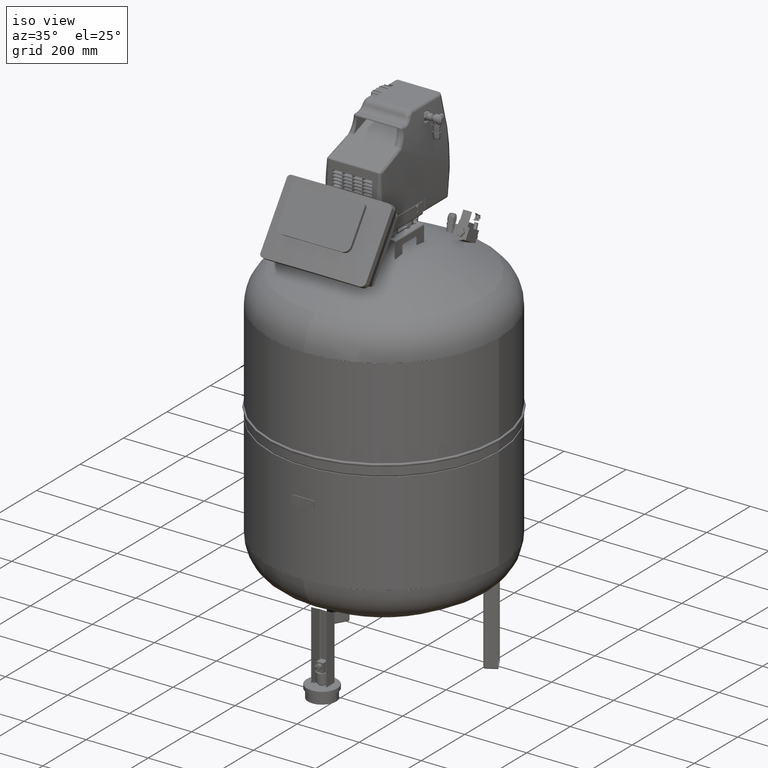
[diagram: clean part render]
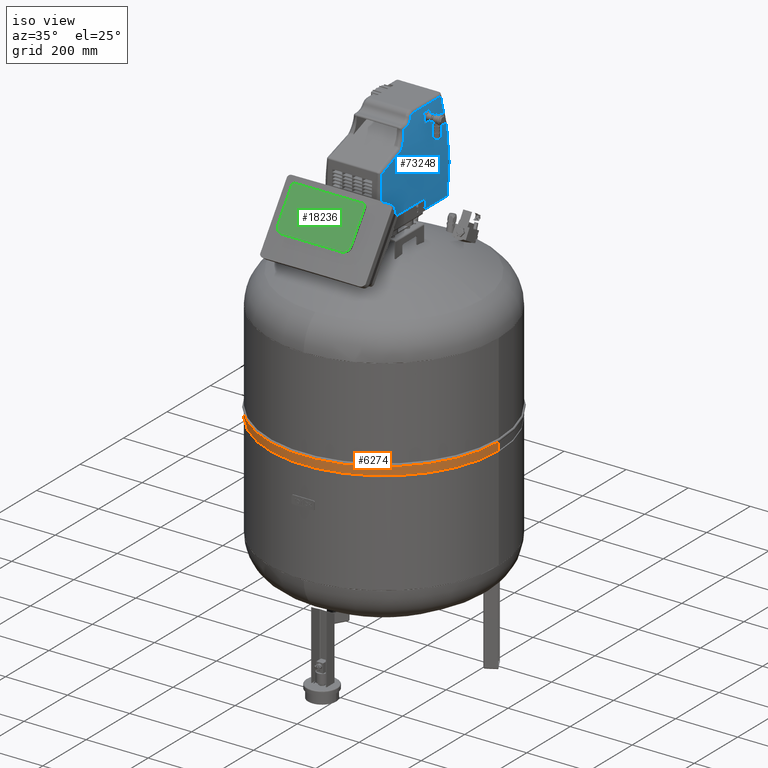
[diagram: same view with three faces highlighted in distinct colors, each labeled with its STEP entity id]
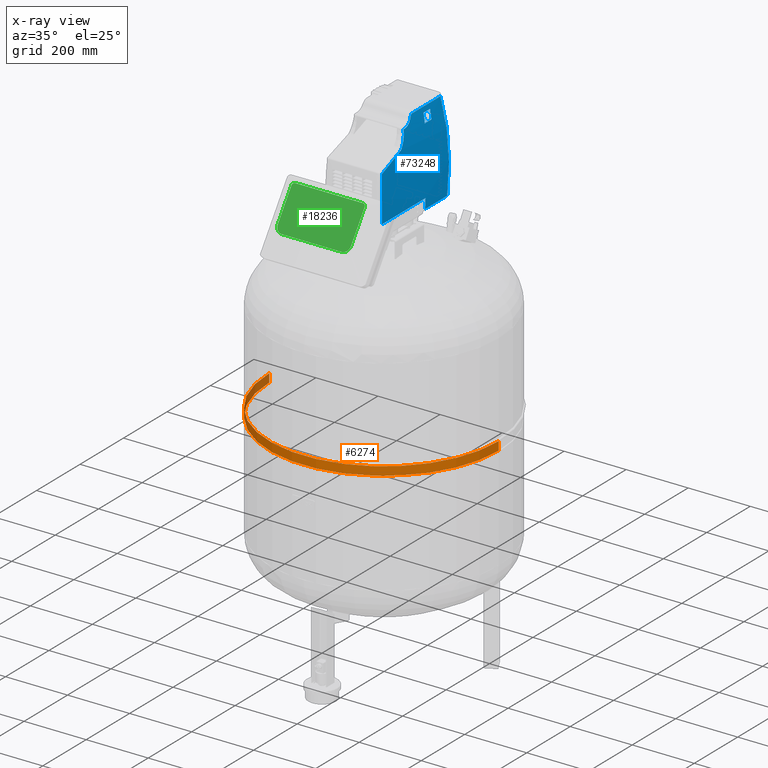
[diagram: x-ray of the same camera — body ghosted, the three highlighted faces saturated]
A machine part, iso view with three faces highlighted in distinct colors.
The next image is the same camera in x-ray (body ghosted, the three faces saturated) — at least one of them is partly hidden behind the body in this view.
Their STEP definitions:

[orange] entity #6274 — the highlighted cylindrical surface (partial cylindrical patch) has radius 370 mm, axis along (-0, 0, -1).
#6208=CARTESIAN_POINT('',(-369.99999999999972,0.0,713.5));
#6209=VERTEX_POINT('',#6208);
#6225=CARTESIAN_POINT('',(369.99999999999972,-4.531044E-014,713.49999999999989));
#6226=VERTEX_POINT('',#6225);
#6233=CARTESIAN_POINT('',(6.050852E-016,0.0,713.5));
#6234=DIRECTION('',(0.0,0.0,-1.0));
#6235=DIRECTION('',(-1.0,0.0,0.0));
#6236=AXIS2_PLACEMENT_3D('',#6233,#6234,#6235);
#6237=CIRCLE('',#6236,369.99999999999972);
#6238=EDGE_CURVE('',#6226,#6209,#6237,.T.);
#6243=CARTESIAN_POINT('',(2.947629E-015,0.0,727.04999999999995));
#6244=DIRECTION('',(-1.728815E-016,0.0,-1.0));
#6245=DIRECTION('',(-1.0,0.0,0.0));
#6246=AXIS2_PLACEMENT_3D('',#6243,#6244,#6245);
#6247=CYLINDRICAL_SURFACE('',#6246,369.99999999999972);
#6248=CARTESIAN_POINT('',(-369.99999999999972,0.0,740.60000000000002));
#6249=VERTEX_POINT('',#6248);
#6250=CARTESIAN_POINT('',(-369.99999999999972,0.0,713.5));
#6251=DIRECTION('',(0.0,0.0,1.0));
#6252=VECTOR('',#6251,27.100000000000023);
#6253=LINE('',#6250,#6252);
#6254=EDGE_CURVE('',#6209,#6249,#6253,.T.);
#6255=ORIENTED_EDGE('',*,*,#6254,.F.);
#6256=ORIENTED_EDGE('',*,*,#6238,.F.);
#6257=CARTESIAN_POINT('',(369.99999999999972,-4.531044E-014,740.59999999999991));
#6258=VERTEX_POINT('',#6257);
#6259=CARTESIAN_POINT('',(369.99999999999972,-4.531044E-014,713.49999999999989));
#6260=DIRECTION('',(0.0,0.0,1.0));
#6261=VECTOR('',#6260,27.100000000000023);
#6262=LINE('',#6259,#6261);
#6263=EDGE_CURVE('',#6226,#6258,#6262,.T.);
#6264=ORIENTED_EDGE('',*,*,#6263,.T.);
#6265=CARTESIAN_POINT('',(5.290174E-015,0.0,740.60000000000002));
#6266=DIRECTION('',(0.0,0.0,-1.0));
#6267=DIRECTION('',(-1.0,0.0,0.0));
#6268=AXIS2_PLACEMENT_3D('',#6265,#6266,#6267);
#6269=CIRCLE('',#6268,369.99999999999972);
#6270=EDGE_CURVE('',#6258,#6249,#6269,.T.);
#6271=ORIENTED_EDGE('',*,*,#6270,.T.);
#6272=EDGE_LOOP('',(#6255,#6256,#6264,#6271));
#6273=FACE_OUTER_BOUND('',#6272,.T.);
#6274=ADVANCED_FACE('',(#6273),#6247,.T.);

[blue] entity #73248 — the highlighted cylindrical surface (partial cylindrical patch) has radius 1323.98 mm, axis along (-0, -1, 0).
#72593=CARTESIAN_POINT('',(88.601441545151232,64.994999999999919,1348.9999999999768));
#72594=VERTEX_POINT('',#72593);
#72595=CARTESIAN_POINT('',(86.691151156861395,64.994999999999919,1316.2934525354472));
#72596=VERTEX_POINT('',#72595);
#72597=CARTESIAN_POINT('',(-1233.9793513774807,64.995000000000147,1409.8388779159679));
#72598=DIRECTION('',(1.825887E-016,1.0,-1.422539E-017));
#72599=DIRECTION('',(-0.996978804846285,1.831420E-016,0.077674079893313));
#72600=AXIS2_PLACEMENT_3D('',#72597,#72598,#72599);
#72601=CIRCLE('',#72600,1323.9793513774807);
#72602=EDGE_CURVE('',#72594,#72596,#72601,.T.);
#72693=CARTESIAN_POINT('',(88.601441545151204,-136.8903313762531,1348.9999999999768));
#72694=VERTEX_POINT('',#72693);
#72695=CARTESIAN_POINT('',(88.601441545151204,-136.8903313762531,1348.9999999999768));
#72696=DIRECTION('',(0.0,1.0,0.0));
#72697=VECTOR('',#72696,201.88533137625302);
#72698=LINE('',#72695,#72697);
#72699=EDGE_CURVE('',#72694,#72594,#72698,.T.);
#73080=CARTESIAN_POINT('',(-1233.9793513774807,16.000000000000142,1409.8388779159679));
#73081=DIRECTION('',(-1.836970E-016,-1.0,0.0));
#73082=DIRECTION('',(-0.996978804846285,1.831420E-016,0.077674079893313));
#73083=AXIS2_PLACEMENT_3D('',#73080,#73081,#73082);
#73084=CYLINDRICAL_SURFACE('',#73083,1323.9793513774807);
#73085=ORIENTED_EDGE('',*,*,#72699,.T.);
#73086=ORIENTED_EDGE('',*,*,#72602,.T.);
#73087=CARTESIAN_POINT('',(86.691151156861423,166.84002823482629,1316.2934525354451));
#73088=VERTEX_POINT('',#73087);
#73089=CARTESIAN_POINT('',(86.691151156861423,166.84002823482629,1316.2934525354472));
#73090=DIRECTION('',(0.0,-1.0,0.0));
#73091=VECTOR('',#73090,101.84502823482637);
#73092=LINE('',#73089,#73091);
#73093=EDGE_CURVE('',#73088,#72596,#73092,.T.);
#73094=ORIENTED_EDGE('',*,*,#73093,.F.);
#73095=CARTESIAN_POINT('',(75.010674275461696,152.69538403177663,1608.500488739608));
#73096=VERTEX_POINT('',#73095);
#73097=CARTESIAN_POINT('',(75.010762962781769,152.69550527546929,1608.4999414908045));
#73098=CARTESIAN_POINT('',(75.749191174399471,153.57893988197421,1603.6343747078738));
#73099=CARTESIAN_POINT('',(76.461548993900777,154.43101745255777,1598.7577192433773));
#73100=CARTESIAN_POINT('',(80.658761252774326,159.45088918635182,1568.8547665451092));
#73101=CARTESIAN_POINT('',(83.47624808203517,162.81815925040431,1543.5646340836993));
#73102=CARTESIAN_POINT('',(86.866661126282992,166.87730527744262,1502.2577082243224));
#73103=CARTESIAN_POINT('',(87.885595526410754,168.09946727365732,1486.3201279941857));
#73104=CARTESIAN_POINT('',(88.98066868086508,169.41888502649036,1462.3922541097099));
#73105=CARTESIAN_POINT('',(89.27361128093321,169.7732097195582,1454.4130024747235));
#73106=CARTESIAN_POINT('',(89.848011111689971,170.47262018923644,1433.6318474367647));
#73107=CARTESIAN_POINT('',(90.016545000868064,170.68393070829498,1420.8180408898106));
#73108=CARTESIAN_POINT('',(89.970200682689978,170.65961550538091,1387.4860353473566));
#73109=CARTESIAN_POINT('',(89.463987559396571,170.07910626780213,1366.9582769109406));
#73110=CARTESIAN_POINT('',(88.000738427995316,168.37361489012565,1336.4091205141578));
#73111=CARTESIAN_POINT('',(87.40245378163371,167.67397813078506,1326.3388147734222));
#73112=CARTESIAN_POINT('',(86.690899334655143,166.83976328187228,1316.2935985766564));
#73113=B_SPLINE_CURVE_WITH_KNOTS('',3,(#73097,#73098,#73099,#73100,#73101,#73102,#73103,#73104,#73105,#73106,#73107,#73108,#73109,#73110,#73111,#73112),.UNSPECIFIED.,.F.,.U.,(4,2,2,2,2,2,2,4),(5.175708728468305,6.663674528679406,14.279302561455872,19.039070081941162,21.418953842183807,25.226767858572039,31.319270284793209,34.322254463356607),.UNSPECIFIED.);
#73114=EDGE_CURVE('',#73096,#73088,#73113,.T.);
#73115=ORIENTED_EDGE('',*,*,#73114,.F.);
#73116=CARTESIAN_POINT('',(75.010674275462975,23.378822094593176,1608.5004887396003));
#73117=VERTEX_POINT('',#73116);
#73118=CARTESIAN_POINT('',(75.010674275462975,23.378822094593176,1608.5004887396003));
#73119=DIRECTION('',(0.0,1.0,0.0));
#73120=VECTOR('',#73119,129.31656193718345);
#73121=LINE('',#73118,#73120);
#73122=EDGE_CURVE('',#73117,#73096,#73121,.T.);
#73123=ORIENTED_EDGE('',*,*,#73122,.F.);
#73124=CARTESIAN_POINT('',(75.968142067331371,14.062405185042877,1602.0858214328646));
#73125=VERTEX_POINT('',#73124);
#73126=CARTESIAN_POINT('',(75.968142067331371,14.062405185042877,1602.0858214328646));
#73127=CARTESIAN_POINT('',(75.774639208175472,14.572791692858033,1603.4043265840448));
#73128=CARTESIAN_POINT('',(75.594013550638465,15.368017924427505,1604.6206469069359));
#73129=CARTESIAN_POINT('',(75.31106009799214,17.281877947123149,1606.5131370832557));
#73130=CARTESIAN_POINT('',(75.200384289232829,18.38269078104193,1607.2470566633378));
#73131=CARTESIAN_POINT('',(75.079804678601135,20.300030723949845,1608.0446928820934));
#73132=CARTESIAN_POINT('',(75.046436797480482,21.082352565038406,1608.2647430025788));
#73133=CARTESIAN_POINT('',(75.016423868216947,22.37686135668244,1608.4626156414724));
#73134=CARTESIAN_POINT('',(75.010674275463259,22.879657423610439,1608.5004887396008));
#73135=CARTESIAN_POINT('',(75.010674275463259,23.378822094593176,1608.5004887396008));
#73136=B_SPLINE_CURVE_WITH_KNOTS('',3,(#73126,#73127,#73128,#73129,#73130,#73131,#73132,#73133,#73134,#73135),.UNSPECIFIED.,.F.,.U.,(4,2,2,2,4),(0.0,0.425288299677221,0.8086467669919,1.048245809063575,1.197995210358371),.UNSPECIFIED.);
#73137=EDGE_CURVE('',#73125,#73117,#73136,.T.);
#73138=ORIENTED_EDGE('',*,*,#73137,.F.);
#73139=CARTESIAN_POINT('',(78.991967721078936,-17.703577952971813,1580.2138705015077));
#73140=VERTEX_POINT('',#73139);
#73141=CARTESIAN_POINT('',(78.991967721078936,-17.703577952971813,1580.2138705015077));
#73142=CARTESIAN_POINT('',(78.991967721078936,-12.872934264143026,1580.2138705015077));
#73143=CARTESIAN_POINT('',(78.856169250862393,-8.026455301410891,1581.2691123584559));
#73144=CARTESIAN_POINT('',(78.351409843855492,0.337770782146578,1585.0890785328079));
#73145=CARTESIAN_POINT('',(78.00029727847047,4.00334899919531,1587.7178420405432));
#73146=CARTESIAN_POINT('',(77.290579667260403,8.860782495330369,1592.8593023758297));
#73147=CARTESIAN_POINT('',(76.978800238860231,10.510488883908494,1595.0842229453101));
#73148=CARTESIAN_POINT('',(76.424662485137617,12.715649074465688,1598.9549934404354));
#73149=CARTESIAN_POINT('',(76.200315151836435,13.45002141807359,1600.5038220287179));
#73150=CARTESIAN_POINT('',(75.968142067331371,14.062405185042877,1602.0858214328646));
#73151=B_SPLINE_CURVE_WITH_KNOTS('',3,(#73141,#73142,#73143,#73144,#73145,#73146,#73147,#73148,#73149,#73150),.UNSPECIFIED.,.F.,.U.,(4,2,2,2,4),(0.0,1.449193106648585,2.755508019683932,3.571954840331023,4.082234103235455),.UNSPECIFIED.);
#73152=EDGE_CURVE('',#73140,#73125,#73151,.T.);
#73153=ORIENTED_EDGE('',*,*,#73152,.F.);
#73154=CARTESIAN_POINT('',(78.991967721078964,-22.870510156187578,1580.2138705015079));
#73155=VERTEX_POINT('',#73154);
#73156=CARTESIAN_POINT('',(78.991967721078922,-22.870510156187578,1580.2138705015077));
#73157=DIRECTION('',(0.0,1.0,0.0));
#73158=VECTOR('',#73157,5.166932203215765);
#73159=LINE('',#73156,#73158);
#73160=EDGE_CURVE('',#73155,#73140,#73159,.T.);
#73161=ORIENTED_EDGE('',*,*,#73160,.F.);
#73162=CARTESIAN_POINT('',(84.20194266078903,-37.948665745968441,1533.6104373370545));
#73163=VERTEX_POINT('',#73162);
#73164=CARTESIAN_POINT('',(84.20194266078903,-37.948665745968441,1533.6104373370545));
#73165=CARTESIAN_POINT('',(83.453209226751483,-32.278544173793847,1541.5845342264015));
#73166=CARTESIAN_POINT('',(82.514354542700772,-28.001995038342869,1550.752209261716));
#73167=CARTESIAN_POINT('',(80.688490253723415,-23.827392375093353,1566.722756467861));
#73168=CARTESIAN_POINT('',(79.867747758794422,-22.928401493692576,1573.4642158946417));
#73169=CARTESIAN_POINT('',(78.991955219558463,-22.870529006692635,1580.2139404177146));
#73170=B_SPLINE_CURVE_WITH_KNOTS('',3,(#73164,#73165,#73166,#73167,#73168,#73169),.UNSPECIFIED.,.F.,.U.,(4,2,4),(0.0,2.929139542646406,4.937938804636223),.UNSPECIFIED.);
#73171=EDGE_CURVE('',#73163,#73155,#73170,.T.);
#73172=ORIENTED_EDGE('',*,*,#73171,.F.);
#73173=CARTESIAN_POINT('',(84.858153322598696,-47.366049054652279,1526.4105686062994));
#73174=VERTEX_POINT('',#73173);
#73175=CARTESIAN_POINT('',(84.858153322598696,-47.366049054652279,1526.4105686062994));
#73176=CARTESIAN_POINT('',(84.815011293705169,-46.035165007291511,1526.8986573128859));
#73177=CARTESIAN_POINT('',(84.758538704623305,-44.74600306327315,1527.534623010823));
#73178=CARTESIAN_POINT('',(84.628055117474048,-42.458637744862784,1528.9871402117074));
#73179=CARTESIAN_POINT('',(84.556664386996033,-41.446473828201619,1529.7758862215198));
#73180=CARTESIAN_POINT('',(84.425031228073181,-39.928972722004431,1531.2123288658595));
#73181=CARTESIAN_POINT('',(84.370746594143554,-39.377724939186322,1531.8008692765477));
#73182=CARTESIAN_POINT('',(84.277360401101447,-38.544111576846802,1532.8051953627009));
#73183=CARTESIAN_POINT('',(84.240202474099704,-38.238405435607405,1533.202965940108));
#73184=CARTESIAN_POINT('',(84.20194266078903,-37.948665745968441,1533.6104373370545));
#73185=B_SPLINE_CURVE_WITH_KNOTS('',3,(#73175,#73176,#73177,#73178,#73179,#73180,#73181,#73182,#73183,#73184),.UNSPECIFIED.,.F.,.U.,(4,2,2,2,4),(0.0,0.425083278759825,0.808256938486993,1.047740475816473,1.197417686647397),.UNSPECIFIED.);
#73186=EDGE_CURVE('',#73174,#73163,#73185,.T.);
#73187=ORIENTED_EDGE('',*,*,#73186,.F.);
#73188=CARTESIAN_POINT('',(87.295067870577213,-134.5751554767904,1494.4274818448775));
#73189=VERTEX_POINT('',#73188);
#73190=CARTESIAN_POINT('',(-1233.9793513774807,-365.22508045632901,1409.8388779159679));
#73191=DIRECTION('',(-1.492042E-016,-0.344315519300506,0.938853994595978));
#73192=DIRECTION('',(1.092149E-016,0.938853994595977,0.344315519300505));
#73193=AXIS2_PLACEMENT_3D('',#73190,#73191,#73192);
#73194=ELLIPSE('',#73193,3845.2502927175988,1323.979351377481);
#73195=EDGE_CURVE('',#73189,#73174,#73194,.T.);
#73196=ORIENTED_EDGE('',*,*,#73195,.F.);
#73197=CARTESIAN_POINT('',(88.601418660295366,-136.89031026926349,1348.9995772660857));
#73198=CARTESIAN_POINT('',(89.660823300275638,-138.02377199539691,1372.0304808424064));
#73199=CARTESIAN_POINT('',(90.119073835978782,-138.44490755997126,1395.1010885454452));
#73200=CARTESIAN_POINT('',(89.875831982586988,-137.95358120155615,1433.7237500115871));
#73201=CARTESIAN_POINT('',(89.50364661138704,-137.43088998401149,1449.2899916399738));
#73202=CARTESIAN_POINT('',(88.533597214534069,-136.15845459943452,1472.6194644600737));
#73203=CARTESIAN_POINT('',(88.141675589328457,-135.65296893456897,1480.3926069017764));
#73204=CARTESIAN_POINT('',(87.557631641494396,-134.90853713373767,1490.2485183987806));
#73205=CARTESIAN_POINT('',(87.428813645512491,-134.7447742592154,1492.3383162332157));
#73206=CARTESIAN_POINT('',(87.295060232162058,-134.57514743083911,1494.4274816699667));
#73207=B_SPLINE_CURVE_WITH_KNOTS('',3,(#73197,#73198,#73199,#73200,#73201,#73202,#73203,#73204,#73205,#73206),.UNSPECIFIED.,.F.,.U.,(4,2,2,2,4),(7.009786163870219,13.87429059637191,18.499054128495882,20.811435894557867,21.433886595432323),.UNSPECIFIED.);
#73208=EDGE_CURVE('',#72694,#73189,#73207,.T.);
#73209=ORIENTED_EDGE('',*,*,#73208,.F.);
#73210=EDGE_LOOP('',(#73085,#73086,#73094,#73115,#73123,#73138,#73153,#73161,#73172,#73187,#73196,#73209));
#73211=FACE_OUTER_BOUND('',#73210,.T.);
#73212=CARTESIAN_POINT('',(81.227216352497408,71.770557485784849,1561.9999999999766));
#73213=VERTEX_POINT('',#73212);
#73214=CARTESIAN_POINT('',(77.408710362837724,71.770557485784849,1591.9999999999764));
#73215=VERTEX_POINT('',#73214);
#73216=CARTESIAN_POINT('',(-1233.9793513774807,71.77055748578519,1409.8388779159679));
#73217=DIRECTION('',(-1.825887E-016,-1.0,1.422539E-017));
#73218=DIRECTION('',(-0.996978804846285,1.831420E-016,0.077674079893313));
#73219=AXIS2_PLACEMENT_3D('',#73216,#73217,#73218);
#73220=CIRCLE('',#73219,1323.9793513774807);
#73221=EDGE_CURVE('',#73213,#73215,#73220,.T.);
#73222=ORIENTED_EDGE('',*,*,#73221,.T.);
#73223=CARTESIAN_POINT('',(77.408710362837724,101.77055748578485,1591.9999999999764));
#73224=VERTEX_POINT('',#73223);
#73225=CARTESIAN_POINT('',(77.408710362837738,71.770557485784849,1591.9999999999766));
#73226=DIRECTION('',(0.0,1.0,0.0));
#73227=VECTOR('',#73226,30.0);
#73228=LINE('',#73225,#73227);
#73229=EDGE_CURVE('',#73215,#73224,#73228,.T.);
#73230=ORIENTED_EDGE('',*,*,#73229,.T.);
#73231=CARTESIAN_POINT('',(81.227216352497436,101.77055748578485,1561.9999999999766));
#73232=VERTEX_POINT('',#73231);
#73233=CARTESIAN_POINT('',(-1233.9793513774807,101.77055748578519,1409.8388779159679));
#73234=DIRECTION('',(1.825887E-016,1.0,-1.422539E-017));
#73235=DIRECTION('',(-0.996978804846285,1.831420E-016,0.077674079893313));
#73236=AXIS2_PLACEMENT_3D('',#73233,#73234,#73235);
#73237=CIRCLE('',#73236,1323.9793513774807);
#73238=EDGE_CURVE('',#73224,#73232,#73237,.T.);
#73239=ORIENTED_EDGE('',*,*,#73238,.T.);
#73240=CARTESIAN_POINT('',(81.227216352497422,101.77055748578485,1561.9999999999766));
#73241=DIRECTION('',(0.0,-1.0,0.0));
#73242=VECTOR('',#73241,30.0);
#73243=LINE('',#73240,#73242);
#73244=EDGE_CURVE('',#73232,#73213,#73243,.T.);
#73245=ORIENTED_EDGE('',*,*,#73244,.T.);
#73246=EDGE_LOOP('',(#73222,#73230,#73239,#73245));
#73247=FACE_BOUND('',#73246,.T.);
#73248=ADVANCED_FACE('',(#73211,#73247),#73084,.T.);

[green] entity #18236 — the highlighted planar face has unit normal (-0, -0.8192, 0.5736).
#18031=CARTESIAN_POINT('',(-137.30000057976841,-293.02819002678893,1348.1023228608315));
#18032=VERTEX_POINT('',#18031);
#18039=CARTESIAN_POINT('',(-137.30000057976818,-229.93478202817394,1438.2090477326205));
#18040=VERTEX_POINT('',#18039);
#18041=CARTESIAN_POINT('',(-137.30000057976818,-229.93478202817394,1438.2090477326205));
#18042=DIRECTION('',(-5.167584E-016,-0.573576436351045,-0.819152044288992));
#18043=VECTOR('',#18042,109.99999999999991);
#18044=LINE('',#18041,#18043);
#18045=EDGE_CURVE('',#18040,#18032,#18044,.T.);
#18062=CARTESIAN_POINT('',(-115.80000057976847,-305.36008340833638,1330.490553908618));
#18063=VERTEX_POINT('',#18062);
#18070=CARTESIAN_POINT('',(-115.80000057976824,-293.02819002678893,1348.1023228608315));
#18071=DIRECTION('',(0.0,-0.819152044288992,0.573576436351046));
#18072=DIRECTION('',(-1.0,0.0,0.0));
#18073=AXIS2_PLACEMENT_3D('',#18070,#18071,#18072);
#18074=CIRCLE('',#18073,21.500000000000021);
#18075=EDGE_CURVE('',#18032,#18063,#18074,.T.);
#18087=CARTESIAN_POINT('',(77.199999420231791,-305.36008340833666,1330.490553908618));
#18088=VERTEX_POINT('',#18087);
#18095=CARTESIAN_POINT('',(-115.80000057976847,-305.36008340833638,1330.490553908618));
#18096=DIRECTION('',(1.0,0.0,0.0));
#18097=VECTOR('',#18096,193.00000000000026);
#18098=LINE('',#18095,#18097);
#18099=EDGE_CURVE('',#18063,#18088,#18098,.T.);
#18111=CARTESIAN_POINT('',(98.699999420231791,-293.02819002678916,1348.1023228608315));
#18112=VERTEX_POINT('',#18111);
#18119=CARTESIAN_POINT('',(77.199999420231791,-293.02819002678916,1348.1023228608315));
#18120=DIRECTION('',(-1.672843E-016,-0.819152044288992,0.573576436351045));
#18121=DIRECTION('',(-5.086343E-016,-0.573576436351045,-0.819152044288992));
#18122=AXIS2_PLACEMENT_3D('',#18119,#18120,#18121);
#18123=CIRCLE('',#18122,21.500000000000011);
#18124=EDGE_CURVE('',#18088,#18112,#18123,.T.);
#18136=CARTESIAN_POINT('',(98.699999420231791,-229.93478202817394,1438.2090477326205));
#18137=VERTEX_POINT('',#18136);
#18144=CARTESIAN_POINT('',(98.699999420231791,-293.02819002678916,1348.1023228608315));
#18145=DIRECTION('',(3.875688E-016,0.573576436351045,0.819152044288993));
#18146=VECTOR('',#18145,110.00000000000014);
#18147=LINE('',#18144,#18146);
#18148=EDGE_CURVE('',#18112,#18137,#18147,.T.);
#18160=CARTESIAN_POINT('',(90.199999420231791,-225.05938231919015,1445.171840109077));
#18161=VERTEX_POINT('',#18160);
#18168=CARTESIAN_POINT('',(90.199999420231791,-229.93478202817394,1438.2090477326205));
#18169=DIRECTION('',(0.0,-0.819152044288992,0.573576436351046));
#18170=DIRECTION('',(1.0,0.0,0.0));
#18171=AXIS2_PLACEMENT_3D('',#18168,#18169,#18170);
#18172=CIRCLE('',#18171,8.49999999999997);
#18173=EDGE_CURVE('',#18137,#18161,#18172,.T.);
#18185=CARTESIAN_POINT('',(-128.80000057976818,-225.05938231918992,1445.171840109077));
#18186=VERTEX_POINT('',#18185);
#18193=CARTESIAN_POINT('',(90.199999420231791,-225.05938231919015,1445.171840109077));
#18194=DIRECTION('',(-1.0,0.0,0.0));
#18195=VECTOR('',#18194,219.0);
#18196=LINE('',#18193,#18195);
#18197=EDGE_CURVE('',#18161,#18186,#18196,.T.);
#18210=CARTESIAN_POINT('',(-128.80000057976818,-229.93478202817394,1438.2090477326205));
#18211=DIRECTION('',(-1.672843E-016,-0.819152044288993,0.573576436351046));
#18212=DIRECTION('',(5.086343E-016,0.573576436351045,0.819152044288992));
#18213=AXIS2_PLACEMENT_3D('',#18210,#18211,#18212);
#18214=CIRCLE('',#18213,8.500000000000016);
#18215=EDGE_CURVE('',#18186,#18040,#18214,.T.);
#18221=CARTESIAN_POINT('',(-19.300000579768209,-264.03449491755674,1389.5096107391701));
#18222=DIRECTION('',(-1.672843E-016,-0.819152044288992,0.573576436351046));
#18223=DIRECTION('',(-1.0,0.0,0.0));
#18224=AXIS2_PLACEMENT_3D('',#18221,#18222,#18223);
#18225=PLANE('',#18224);
#18226=ORIENTED_EDGE('',*,*,#18045,.T.);
#18227=ORIENTED_EDGE('',*,*,#18075,.T.);
#18228=ORIENTED_EDGE('',*,*,#18099,.T.);
#18229=ORIENTED_EDGE('',*,*,#18124,.T.);
#18230=ORIENTED_EDGE('',*,*,#18148,.T.);
#18231=ORIENTED_EDGE('',*,*,#18173,.T.);
#18232=ORIENTED_EDGE('',*,*,#18197,.T.);
#18233=ORIENTED_EDGE('',*,*,#18215,.T.);
#18234=EDGE_LOOP('',(#18226,#18227,#18228,#18229,#18230,#18231,#18232,#18233));
#18235=FACE_OUTER_BOUND('',#18234,.T.);
#18236=ADVANCED_FACE('',(#18235),#18225,.T.);